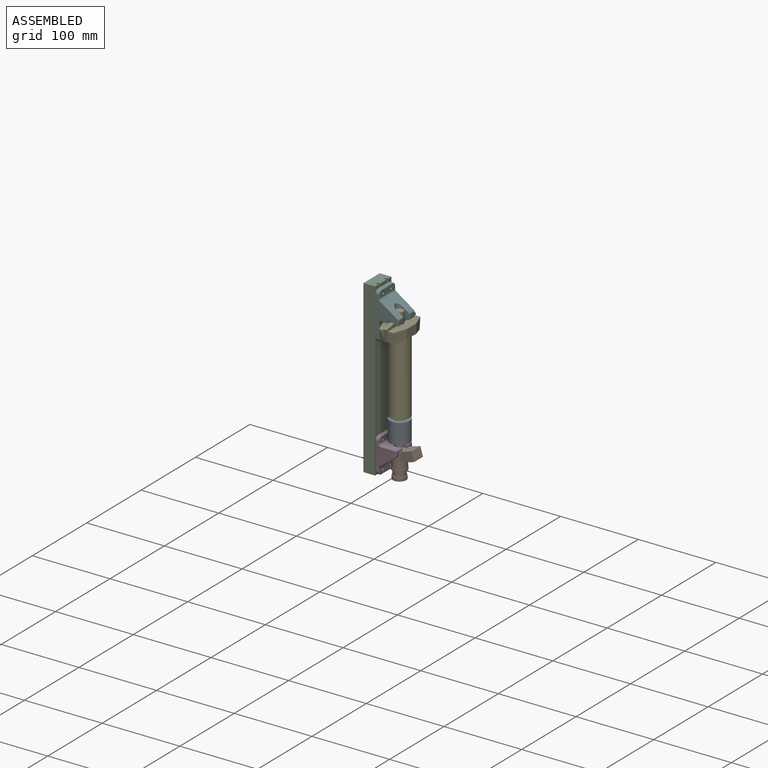
[diagram: assembled view]
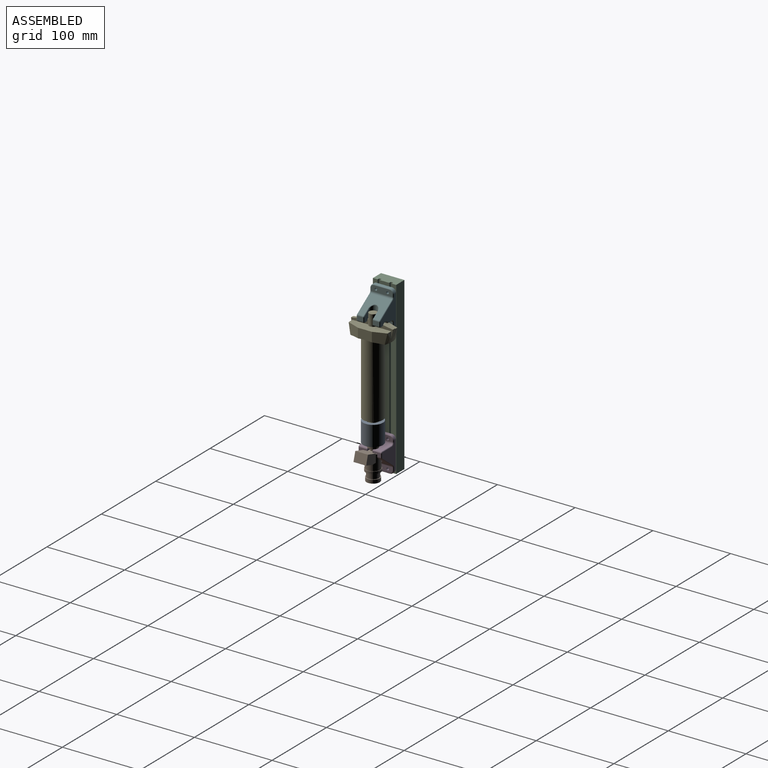
[diagram: assembled view, second angle]
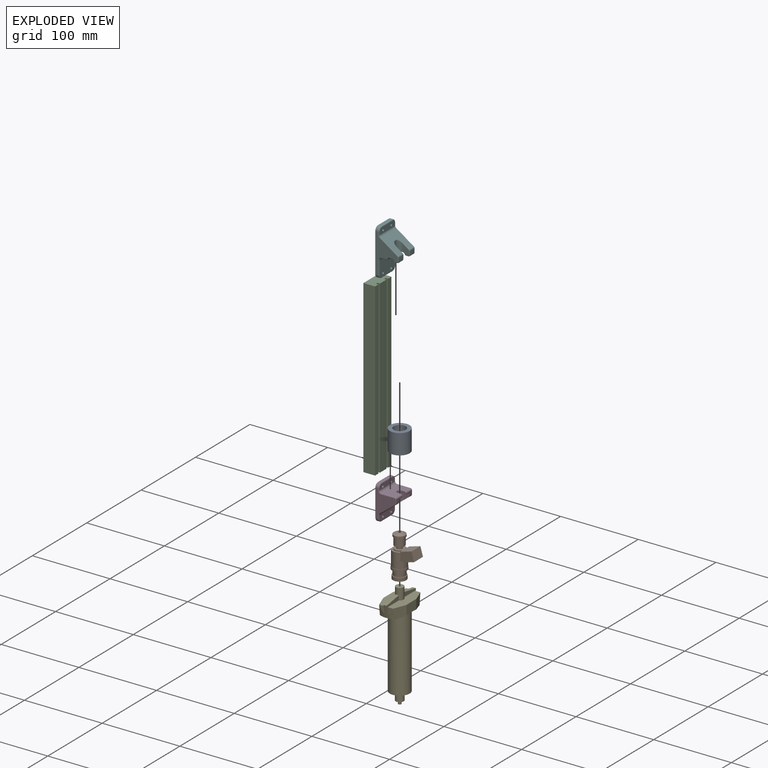
[diagram: exploded view]
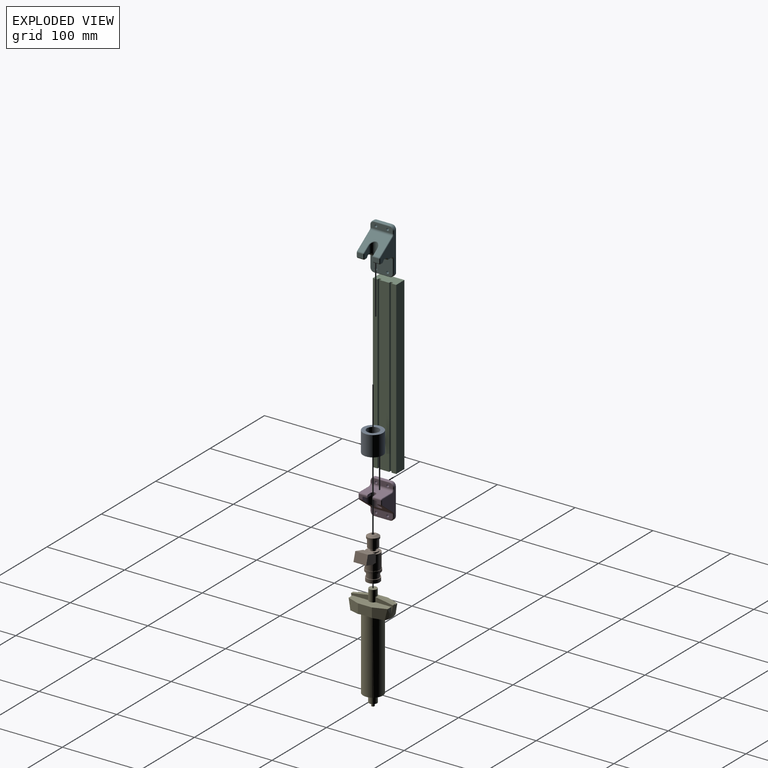
[diagram: exploded view, second angle]
ASSEMBLY  parts=6 mates=5
PART A: 6 faces, bbox 25.5x26x25.5 mm
  f0: plane 25.5x25.5mm, normal (0,-1,0), area 356.8mm2, adj f1,f5
  f1: cylinder r=7mm len=14mm, axis (0,-1,0), area 351.9mm2, adj f0,f2
  f2: cone r=7mm half-angle=4.3deg, axis (0,1,0), area 464.7mm2, adj f1,f3
  f3: cylinder r=7.75mm len=15.5mm, axis (0,-1,0), area 389.6mm2, adj f2,f4
  f4: plane 25.5x25.5mm, normal (0,1,0), area 322mm2, adj f3,f5
  f5: cylinder r=12.75mm len=26mm, axis (0,-1,0), area 2082.9mm2, adj f0,f4
PART B: 29 faces, bbox 54x19x34 mm
  f0: plane 18x15.62mm, normal (1,0,0), area 101.8mm2, adj f1,f7,f22
  f1: cylinder r=9mm len=19.5mm, axis (-1,0,0), area 982.1mm2, adj f0,f8,f22,f23
  f2: cone r=7.5mm half-angle=63.4deg, axis (1,0,0), area 49.2mm2, adj f3,f21
  f3: cylinder r=6.5mm len=13mm, axis (-1,0,0), area 408.4mm2, adj f2,f4
  f4: plane 13x13mm, normal (-1,0,0), area 94.2mm2, adj f3,f5
  f5: cylinder r=3.5mm len=7mm, axis (-1,0,0), area 79.2mm2, adj f4,f6
  f6: plane 13x13mm, normal (1,0,0), area 94.2mm2, adj f5,f7
  f7: cylinder r=6.5mm len=13mm, axis (-1,0,0), area 57.2mm2, adj f0,f6
  f8: plane 19x19mm, normal (1,0,0), area 29.1mm2, adj f1,f9
  f9: cylinder r=9.5mm len=19mm, axis (-1,0,0), area 179.1mm2, adj f8,f10
  f10: plane 19x19mm, normal (-1,0,0), area 106.8mm2, adj f9,f11
  f11: cylinder r=7.5mm len=15mm, axis (-1,0,0), area 329.9mm2, adj f10,f12
  f12: plane 17x17mm, normal (1,0,0), area 50.3mm2, adj f11,f13
  f13: cylinder r=8.5mm len=17mm, axis (-1,0,0), area 240.3mm2, adj f12,f14
  f14: plane 17x17mm, normal (-1,0,0), area 148.4mm2, adj f13,f15
  f15: cone r=5mm half-angle=26.6deg, axis (-1,0,0), area 112.4mm2, adj f14,f16
  f16: plane 6x6mm, normal (-1,0,0), area 28.3mm2, adj f15
  f17: plane 3.5x3.5mm, normal (1,0,0), area 9.6mm2, adj f18
  f18: cylinder r=1.75mm len=6mm, axis (-1,0,0), area 66mm2, adj f17,f19
  f19: plane 8x8mm, normal (1,0,0), area 40.6mm2, adj f18,f20
  f20: cone r=4mm half-angle=60.3deg, axis (-1,0,0), area 145.6mm2, adj f19,f21
  f21: cylinder r=7.5mm len=15mm, axis (-1,0,0), area 117.8mm2, adj f2,f20
  f22: plane 16.3x10.79mm, normal (0,0,-1), area 66.1mm2, adj f0,f1,f23,f24,f27,f28
  f23: plane 16.3x5.88mm, normal (-1,0,0), area 75.9mm2, adj f1,f22,f26,f27,f28
  f24: plane 16.3x14.55mm, normal (0.96,0,-0.28), area 246.8mm2, adj f22,f25,f27,f28
  f25: plane 16.3x11.53mm, normal (0.28,0,0.96), area 195.6mm2, adj f24,f26,f27,f28
  f26: plane 16.3x12mm, normal (-0.96,0,0.28), area 203.6mm2, adj f23,f25,f27,f28
  f27: plane 17.88x15mm, normal (0,-1,0), area 197.5mm2, adj f22,f23,f24,f25,f26
  f28: plane 17.88x15mm, normal (0,1,0), area 197.5mm2, adj f22,f23,f24,f25,f26
PART C: 14 faces, bbox 220x30x15 mm
  f0: plane 220x15mm, normal (0,-1,0), area 3300mm2, adj f1,f11,f12,f13
  f1: plane 220x30mm, normal (0,0,-1), area 6600mm2, adj f0,f2,f12,f13
  f2: plane 220x15mm, normal (0,1,0), area 3300mm2, adj f1,f3,f12,f13
  f3: plane 220x6mm, normal (0,0,1), area 1320mm2, adj f2,f4,f12,f13
  f4: plane 220x3mm, normal (0,-1,0), area 660mm2, adj f3,f5,f12,f13
  f5: plane 220x3mm, normal (0,0,1), area 660mm2, adj f4,f6,f12,f13
  f6: plane 220x3mm, normal (0,1,0), area 660mm2, adj f5,f7,f12,f13
  f7: plane 220x12mm, normal (0,0,1), area 2640mm2, adj f6,f8,f12,f13
  f8: plane 220x3mm, normal (0,-1,0), area 660mm2, adj f7,f9,f12,f13
  f9: plane 220x3mm, normal (0,0,1), area 660mm2, adj f8,f10,f12,f13
  f10: plane 220x3mm, normal (0,1,0), area 660mm2, adj f9,f11,f12,f13
  f11: plane 220x6mm, normal (0,0,1), area 1320mm2, adj f0,f10,f12,f13
  f12: plane 30x15mm, normal (1,0,0), area 432mm2, adj f0,f1,f2,f3,f4,f5,f6,f7
  f13: plane 30x15mm, normal (-1,0,0), area 432mm2, adj f0,f1,f2,f3,f4,f5,f6,f7
PART D: 67 faces, bbox 45.8x30.8x27.2 mm
  f0: plane 28x19.67mm, normal (-0.79,0,0.61), area 400.7mm2, adj f14,f15,f16,f19,f31,f32,f42,f43
  f1: plane 10.6x4.53mm, normal (0,0,1), area 29.7mm2, adj f12,f16,f17,f20,f31,f33,f46
  f2: plane 28x17mm, normal (1,0,0), area 430.6mm2, adj f11,f12,f13,f18,f33,f34,f50,f51
  f3: plane 28x7.53mm, normal (0,0,1), area 187.8mm2, adj f19,f23,f26,f35,f36,f37,f38,f39
  f4: plane 35x25mm, normal (0,1,0), area 438.8mm2, adj f27,f30,f38,f40,f42,f44,f46,f48
  f5: plane 20x3mm, normal (-1,0,0), area 60mm2, adj f27,f28,f35,f59
  f6: plane 35x25mm, normal (0,-1,0), area 438.8mm2, adj f28,f29,f39,f41,f43,f45,f47,f49
  f7: plane 20x3mm, normal (1,0,0), area 60mm2, adj f29,f30,f58,f66
  f8: plane 28x6mm, normal (0,0,1), area 145mm2, adj f18,f24,f25,f54,f55,f56,f57,f58
  f9: plane 43x28mm, normal (0,0,-1), area 1158.1mm2, adj f23,f24,f25,f26,f59,f60,f61,f62
  f10: plane 10.6x4.53mm, normal (0,0,1), area 29.7mm2, adj f11,f14,f17,f22,f32,f34,f47
  f11: plane 6x3.5mm, normal (0,1,0), area 20.1mm2, adj f2,f10,f13,f17,f34
  f12: plane 6x3.5mm, normal (0,-1,0), area 20.1mm2, adj f1,f2,f13,f17,f33
  f13: cylinder r=3.4mm len=6.8mm, axis (1,0,0), area 37.4mm2, adj f2,f11,f12,f17
  f14: plane 8.14x6mm, normal (0,1,0), area 34.6mm2, adj f0,f10,f15,f22,f32
  f15: cylinder r=9.5mm len=19mm, axis (1,0,0), area 382.3mm2, adj f0,f14,f16,f21
  f16: plane 8.14x6mm, normal (0,-1,0), area 34.6mm2, adj f0,f1,f15,f20,f31
  f17: plane 17x14.5mm, normal (-1,0,0), area 156.5mm2, adj f1,f10,f11,f12,f13,f20,f21,f22
  f18: cylinder r=3mm len=28mm, axis (0,-1,0), area 131.9mm2, adj f2,f8,f52,f53
  f19: cylinder r=3mm len=28mm, axis (0,1,0), area 76.7mm2, adj f0,f3,f40,f41
  f20: cylinder r=1mm len=6mm, axis (0,0,-1), area 9.4mm2, adj f1,f16,f17,f21
  f21: torus R=8.5mm, axis (1,0,0), area 45.1mm2, adj f15,f17,f20,f22
  f22: cylinder r=1mm len=6mm, axis (0,0,1), area 9.4mm2, adj f10,f14,f17,f21
  f23: cylinder r=1.6mm len=5mm, axis (0,0,1), area 50.3mm2, adj f3,f9
  f24: cylinder r=1.6mm len=5mm, axis (0,0,1), area 50.3mm2, adj f8,f9
  f25: cylinder r=1.6mm len=5mm, axis (0,0,1), area 50.3mm2, adj f8,f9
  f26: cylinder r=1.6mm len=5mm, axis (0,0,1), area 50.3mm2, adj f3,f9
  f27: cylinder r=5mm len=5mm, axis (0,0,1), area 23.6mm2, adj f4,f5,f36,f60
  f28: cylinder r=5mm len=5mm, axis (0,0,-1), area 23.6mm2, adj f5,f6,f37,f61
  f29: cylinder r=5mm len=5mm, axis (0,0,1), area 23.6mm2, adj f6,f7,f57,f65
  f30: cylinder r=5mm len=5mm, axis (0,0,-1), area 23.6mm2, adj f4,f7,f56,f64
  f31: cylinder r=3mm len=4.5mm, axis (0,-1,0), area 12.3mm2, adj f0,f1,f16,f44
  f32: cylinder r=3mm len=4.5mm, axis (0,-1,0), area 12.3mm2, adj f0,f10,f14,f45
  f33: cylinder r=2mm len=10.6mm, axis (0,1,0), area 33.3mm2, adj f1,f2,f12,f48
  f34: cylinder r=2mm len=10.6mm, axis (0,1,0), area 33.3mm2, adj f2,f10,f11,f49
  f35: cylinder r=1mm len=20mm, axis (0,1,0), area 31.4mm2, adj f3,f5,f36,f37
  f36: torus R=4mm, axis (0,0,1), area 11.4mm2, adj f3,f27,f35,f38
  f37: torus R=4mm, axis (0,0,1), area 11.4mm2, adj f3,f28,f35,f39
  f38: cylinder r=1mm len=3.53mm, axis (1,0,0), area 5.5mm2, adj f3,f4,f36,f40
  f39: cylinder r=1mm len=3.53mm, axis (-1,0,0), area 5.5mm2, adj f3,f6,f37,f41
  f40: torus R=4mm, axis (0,1,0), area 4.8mm2, adj f4,f19,f38,f42
  f41: torus R=4mm, axis (0,1,0), area 4.8mm2, adj f6,f19,f39,f43
  f42: cylinder r=1mm len=20.28mm, axis (0.61,0,0.79), area 39mm2, adj f0,f4,f40,f44
  f43: cylinder r=1mm len=20.28mm, axis (-0.61,0,-0.79), area 39mm2, adj f0,f6,f41,f45
  f44: torus R=2mm, axis (0,1,0), area 3.8mm2, adj f4,f31,f42,f46
  f45: torus R=2mm, axis (0,1,0), area 3.8mm2, adj f6,f32,f43,f47
  f46: cylinder r=1mm len=4.53mm, axis (1,0,0), area 7.1mm2, adj f1,f4,f44,f48
  f47: cylinder r=1mm len=4.53mm, axis (-1,0,0), area 7.1mm2, adj f6,f10,f45,f49
  f48: torus R=1mm, axis (0,1,0), area 4mm2, adj f4,f33,f46,f50
  f49: torus R=1mm, axis (0,1,0), area 4mm2, adj f6,f34,f47,f51
  f50: cylinder r=1mm len=17mm, axis (0,0,-1), area 26.7mm2, adj f2,f4,f48,f52
  f51: cylinder r=1mm len=17mm, axis (0,0,1), area 26.7mm2, adj f2,f6,f49,f53
  f52: torus R=4mm, axis (0,1,0), area 8.3mm2, adj f4,f18,f50,f54
  f53: torus R=4mm, axis (0,1,0), area 8.3mm2, adj f6,f18,f51,f55
  f54: cylinder r=1mm len=2mm, axis (1,0,0), area 3.1mm2, adj f4,f8,f52,f56
  f55: cylinder r=1mm len=2mm, axis (-1,0,0), area 3.1mm2, adj f6,f8,f53,f57
  f56: torus R=4mm, axis (0,0,1), area 11.4mm2, adj f8,f30,f54,f58
  f57: torus R=4mm, axis (0,0,1), area 11.4mm2, adj f8,f29,f55,f58
  f58: cylinder r=1mm len=20mm, axis (0,-1,0), area 31.4mm2, adj f7,f8,f56,f57
  f59: cylinder r=1mm len=20mm, axis (0,-1,0), area 31.4mm2, adj f5,f9,f60,f61
  f60: torus R=4mm, axis (0,0,1), area 11.4mm2, adj f9,f27,f59,f62
  f61: torus R=4mm, axis (0,0,1), area 11.4mm2, adj f9,f28,f59,f63
  f62: cylinder r=1mm len=35mm, axis (-1,0,0), area 55mm2, adj f4,f9,f60,f64
  f63: cylinder r=1mm len=35mm, axis (1,0,0), area 55mm2, adj f6,f9,f61,f65
  f64: torus R=4mm, axis (0,0,1), area 11.4mm2, adj f9,f30,f62,f66
  f65: torus R=4mm, axis (0,0,1), area 11.4mm2, adj f9,f29,f63,f66
  f66: cylinder r=1mm len=20mm, axis (0,1,0), area 31.4mm2, adj f7,f9,f64,f65
PART E: 35 faces, bbox 137.1x48.7x54.1 mm
  f0: cone r=24.28mm half-angle=9.8deg, axis (1,0,0), area 205mm2, adj f3,f5,f22,f24,f25,f28,f31,f33
  f1: cone r=24.28mm half-angle=9.8deg, axis (1,0,0), area 205mm2, adj f3,f15,f21,f23,f26,f27,f30,f34
  f2: plane 50.08x12.95mm, normal (1,0,0), area 532.9mm2, adj f14,f23,f24,f27,f28,f29,f30,f31
  f3: cone r=12.7mm half-angle=80.2deg, axis (-1,0,0), area 760.8mm2, adj f0,f1,f16,f29,f30,f31,f32,f33
  f4: plane 50.08x12.95mm, normal (1,0,0), area 532.9mm2, adj f14,f21,f22,f25,f26,f32,f33,f34
  f5: cone r=27mm half-angle=80.2deg, axis (-1,0,0), area 92mm2, adj f0,f14,f22,f24
  f6: plane 4x4mm, normal (-1,0,0), area 7.7mm2, adj f7,f20
  f7: cylinder r=1.25mm len=4.95mm, axis (1,0,0), area 38.9mm2, adj f6,f8
  f8: plane 8.8x8.8mm, normal (1,0,0), area 55.9mm2, adj f7,f9
  f9: cylinder r=4.4mm len=8.8mm, axis (1,0,0), area 208.6mm2, adj f8,f10
  f10: cone r=11.95mm half-angle=67deg, axis (1,0,0), area 421.2mm2, adj f9,f11
  f11: cylinder r=11.95mm len=103.94mm, axis (1,0,0), area 7803.9mm2, adj f10,f12
  f12: plane 23.9x23.9mm, normal (-1,0,0), area 448.6mm2, adj f11
  f13: plane 10x10mm, normal (1,0,0), area 78.5mm2, adj f14
  f14: cylinder r=5mm len=14.5mm, axis (1,0,0), area 404.3mm2, adj f2,f4,f5,f13,f15,f21,f22,f23
  f15: cone r=27mm half-angle=80.2deg, axis (-1,0,0), area 92mm2, adj f1,f14,f21,f23
  f16: cylinder r=12.7mm len=95.8mm, axis (1,0,0), area 7644.5mm2, adj f3,f17
  f17: cone r=5.15mm half-angle=67deg, axis (1,0,0), area 459.8mm2, adj f16,f18
  f18: cylinder r=5.15mm len=10.3mm, axis (1,0,0), area 252.4mm2, adj f17,f19
  f19: plane 10.3x10.3mm, normal (-1,0,0), area 70.8mm2, adj f18,f20
  f20: cylinder r=2mm len=4.2mm, axis (1,0,0), area 52.8mm2, adj f6,f19
  f21: plane 22.37x14.67mm, normal (0,1,0), area 99.5mm2, adj f1,f4,f14,f15,f26
  f22: plane 22.37x14.67mm, normal (0,1,0), area 99.5mm2, adj f0,f4,f5,f14,f25
  f23: plane 22.37x14.67mm, normal (0,-1,0), area 99.5mm2, adj f1,f2,f14,f15,f27
  f24: plane 22.37x14.67mm, normal (0,-1,0), area 99.5mm2, adj f0,f2,f5,f14,f28
  f25: plane 8.6x6.95mm, normal (0,0,-1), area 35.9mm2, adj f0,f4,f22
  f26: plane 8.6x6.95mm, normal (0,0,1), area 35.9mm2, adj f1,f4,f21
  f27: plane 8.6x6.95mm, normal (0,0,1), area 35.9mm2, adj f1,f2,f23
  f28: plane 8.6x6.95mm, normal (0,0,-1), area 35.9mm2, adj f0,f2,f24
  f29: plane 18x12.33mm, normal (0,-1,0), area 216.8mm2, adj f2,f3,f30,f31
  f30: plane 16.18x13.64mm, normal (0,-0.94,0.35), area 200.4mm2, adj f1,f2,f3,f29
  f31: plane 16.18x13.64mm, normal (0,-0.94,-0.35), area 200.4mm2, adj f0,f2,f3,f29
  f32: plane 18x12.33mm, normal (0,1,0), area 216.8mm2, adj f3,f4,f33,f34
  f33: plane 16.18x13.64mm, normal (0,0.94,-0.35), area 200.4mm2, adj f0,f3,f4,f32
  f34: plane 16.18x13.64mm, normal (0,0.94,0.35), area 200.4mm2, adj f1,f3,f4,f32
PART F: 109 faces, bbox 60.8x30.8x30.2 mm
  f0: plane 12.17x1.22mm, normal (0.55,0,0.83), area 16.4mm2, adj f34,f35,f55,f100
  f1: plane 7.5x2.93mm, normal (1,0,0), area 22mm2, adj f33,f38,f67,f86
  f2: plane 7.5x4.94mm, normal (0,0,1), area 37.1mm2, adj f28,f29,f70,f95
  f3: plane 7.5x1.22mm, normal (0.55,0,-0.83), area 11mm2, adj f33,f36,f63,f90
  f4: plane 8.2x2.86mm, normal (1,0,0), area 22.1mm2, adj f31,f32,f58,f108
  f5: plane 7.5x2.93mm, normal (1,0,0), area 22mm2, adj f28,f30,f66,f99
  f6: plane 50x29mm, normal (0,1,0), area 554.6mm2, adj f12,f39,f42,f46,f48,f50,f52,f54
  f7: plane 50x29mm, normal (0,-1,0), area 554.6mm2, adj f12,f40,f41,f47,f49,f51,f53,f55
  f8: plane 28x7.41mm, normal (0,0,1), area 184.6mm2, adj f16,f19,f26,f78,f79,f80,f81,f82
  f9: plane 20x4mm, normal (-1,0,0), area 80mm2, adj f12,f39,f40,f82
  f10: plane 20x4mm, normal (1,0,0), area 80mm2, adj f12,f41,f42,f43
  f11: plane 28x21mm, normal (0,0,1), area 565mm2, adj f17,f18,f27,f43,f44,f45,f46,f47
  f12: plane 60x30mm, normal (0,0,-1), area 1746.4mm2, adj f6,f7,f9,f10,f16,f17,f18,f19
  f13: plane 7.5x4.94mm, normal (0,0,1), area 37.1mm2, adj f37,f38,f71,f83
  f14: plane 28x22.81mm, normal (-0.83,0,0.56), area 573.3mm2, adj f26,f29,f37,f74,f75,f87,f89,f91
  f15: plane 28x5.93mm, normal (1,0,0), area 166mm2, adj f27,f34,f50,f51
  f16: cylinder r=1.6mm len=5mm, axis (0,0,1), area 50.3mm2, adj f8,f12
  f17: cylinder r=1.6mm len=5mm, axis (0,0,1), area 50.3mm2, adj f11,f12
  f18: cylinder r=1.6mm len=5mm, axis (0,0,1), area 50.3mm2, adj f11,f12
  f19: cylinder r=1.6mm len=5mm, axis (0,0,1), area 50.3mm2, adj f8,f12
  f20: plane 7.5x1.22mm, normal (0.55,0,-0.83), area 11mm2, adj f30,f31,f62,f103
  f21: plane 12.17x1.22mm, normal (0.55,0,0.83), area 16.4mm2, adj f32,f34,f54,f104
  f22: plane 8.2x2.86mm, normal (1,0,0), area 22.1mm2, adj f35,f36,f59,f96
  f23: cylinder r=5.5mm len=16.17mm, axis (1,0,0), area 220.4mm2, adj f24,f25,f89,f94,f96,f98,f100,f102
  f24: plane 11.91x8mm, normal (0,-1,0), area 66mm2, adj f23,f91,f93,f95,f97,f99,f101,f103
  f25: plane 11.91x8mm, normal (0,1,0), area 66mm2, adj f23,f83,f84,f85,f86,f87,f88,f90
  f26: cylinder r=3mm len=28mm, axis (0,1,0), area 81.8mm2, adj f8,f14,f76,f77
  f27: cylinder r=3mm len=28mm, axis (0,-1,0), area 131.9mm2, adj f11,f15,f48,f49
  f28: cylinder r=2mm len=7.5mm, axis (0,1,0), area 23.6mm2, adj f2,f5,f68,f97
  f29: cylinder r=2mm len=7.5mm, axis (0,-1,0), area 14.6mm2, adj f2,f14,f72,f93
  f30: cylinder r=2mm len=7.5mm, axis (0,1,0), area 14.7mm2, adj f5,f20,f64,f101
  f31: cylinder r=2mm len=7.5mm, axis (0,-1,0), area 14.7mm2, adj f4,f20,f60,f105,f107
  f32: cylinder r=2mm len=10.42mm, axis (0,-1,0), area 18.1mm2, adj f4,f21,f56,f106
  f33: cylinder r=2mm len=7.5mm, axis (0,1,0), area 14.7mm2, adj f1,f3,f65,f88
  f34: cylinder r=2mm len=28mm, axis (0,1,0), area 53.1mm2, adj f0,f15,f21,f52,f53,f102
  f35: cylinder r=2mm len=10.42mm, axis (0,-1,0), area 18.1mm2, adj f0,f22,f57,f98
  f36: cylinder r=2mm len=7.5mm, axis (0,-1,0), area 14.7mm2, adj f3,f22,f61,f92,f94
  f37: cylinder r=2mm len=7.5mm, axis (0,-1,0), area 14.6mm2, adj f13,f14,f73,f85
  f38: cylinder r=2mm len=7.5mm, axis (0,1,0), area 23.6mm2, adj f1,f13,f69,f84
  f39: cylinder r=5mm len=5mm, axis (0,0,1), area 31.4mm2, adj f6,f9,f12,f80
  f40: cylinder r=5mm len=5mm, axis (0,0,-1), area 31.4mm2, adj f7,f9,f12,f81
  f41: cylinder r=5mm len=5mm, axis (0,0,-1), area 31.4mm2, adj f7,f10,f12,f45
  f42: cylinder r=5mm len=5mm, axis (0,0,1), area 31.4mm2, adj f6,f10,f12,f44
  f43: cylinder r=1mm len=20mm, axis (0,-1,0), area 31.4mm2, adj f10,f11,f44,f45
  f44: torus R=4mm, axis (0,0,1), area 11.4mm2, adj f11,f42,f43,f46
  f45: torus R=4mm, axis (0,0,1), area 11.4mm2, adj f11,f41,f43,f47
  f46: cylinder r=1mm len=17mm, axis (1,0,0), area 26.7mm2, adj f6,f11,f44,f48
  f47: cylinder r=1mm len=17mm, axis (-1,0,0), area 26.7mm2, adj f7,f11,f45,f49
  f48: torus R=4mm, axis (0,1,0), area 8.3mm2, adj f6,f27,f46,f50
  f49: torus R=4mm, axis (0,1,0), area 8.3mm2, adj f7,f27,f47,f51
  f50: cylinder r=1mm len=5.93mm, axis (0,0,-1), area 9.3mm2, adj f6,f15,f48,f52
  f51: cylinder r=1mm len=5.93mm, axis (0,0,1), area 9.3mm2, adj f7,f15,f49,f53
  f52: torus R=1mm, axis (0,1,0), area 2.5mm2, adj f6,f34,f50,f54
  f53: torus R=1mm, axis (0,1,0), area 2.5mm2, adj f7,f34,f51,f55
  f54: cylinder r=1mm len=1.77mm, axis (0.83,0,-0.55), area 2.3mm2, adj f6,f21,f52,f56
  f55: cylinder r=1mm len=1.77mm, axis (-0.83,0,0.55), area 2.3mm2, adj f0,f7,f53,f57
  f56: torus R=3mm, axis (0,1,0), area 3.6mm2, adj f6,f32,f54,f58
  f57: torus R=3mm, axis (0,1,0), area 3.6mm2, adj f7,f35,f55,f59
  f58: cylinder r=1mm len=2.86mm, axis (0,0,-1), area 4.5mm2, adj f4,f6,f56,f60
  f59: cylinder r=1mm len=2.86mm, axis (0,0,1), area 4.5mm2, adj f7,f22,f57,f61
  f60: torus R=3mm, axis (0,1,0), area 3.6mm2, adj f6,f31,f58,f62
  f61: torus R=3mm, axis (0,1,0), area 3.6mm2, adj f7,f36,f59,f63
  f62: cylinder r=1mm len=1.77mm, axis (-0.83,0,-0.55), area 2.3mm2, adj f6,f20,f60,f64
  f63: cylinder r=1mm len=1.77mm, axis (0.83,0,0.55), area 2.3mm2, adj f3,f7,f61,f65
  f64: torus R=1mm, axis (0,1,0), area 2.5mm2, adj f6,f30,f62,f66
  f65: torus R=1mm, axis (0,1,0), area 2.5mm2, adj f7,f33,f63,f67
  f66: cylinder r=1mm len=2.93mm, axis (0,0,-1), area 4.6mm2, adj f5,f6,f64,f68
  f67: cylinder r=1mm len=2.93mm, axis (0,0,1), area 4.6mm2, adj f1,f7,f65,f69
  f68: torus R=1mm, axis (0,1,0), area 4mm2, adj f6,f28,f66,f70
  f69: torus R=1mm, axis (0,1,0), area 4mm2, adj f7,f38,f67,f71
  f70: cylinder r=1mm len=4.94mm, axis (1,0,0), area 7.8mm2, adj f2,f6,f68,f72
  f71: cylinder r=1mm len=4.94mm, axis (-1,0,0), area 7.8mm2, adj f7,f13,f69,f73
  f72: torus R=1mm, axis (0,1,0), area 2.5mm2, adj f6,f29,f70,f74
  f73: torus R=1mm, axis (0,1,0), area 2.5mm2, adj f7,f37,f71,f75
  f74: cylinder r=1mm len=23.37mm, axis (0.56,0,0.83), area 43.3mm2, adj f6,f14,f72,f76
  f75: cylinder r=1mm len=23.37mm, axis (-0.56,0,-0.83), area 43.3mm2, adj f7,f14,f73,f77
  f76: torus R=4mm, axis (0,1,0), area 5.1mm2, adj f6,f26,f74,f78
  f77: torus R=4mm, axis (0,1,0), area 5.1mm2, adj f7,f26,f75,f79
  f78: cylinder r=1mm len=3.41mm, axis (1,0,0), area 5.4mm2, adj f6,f8,f76,f80
  f79: cylinder r=1mm len=3.41mm, axis (-1,0,0), area 5.4mm2, adj f7,f8,f77,f81
  f80: torus R=4mm, axis (0,0,1), area 11.4mm2, adj f8,f39,f78,f82
  f81: torus R=4mm, axis (0,0,1), area 11.4mm2, adj f8,f40,f79,f82
  f82: cylinder r=1mm len=20mm, axis (0,1,0), area 31.4mm2, adj f8,f9,f80,f81
  f83: cylinder r=1mm len=4.94mm, axis (1,0,0), area 7.8mm2, adj f13,f25,f84,f85
  f84: torus R=1mm, axis (0,1,0), area 4mm2, adj f25,f38,f83,f86
  f85: torus R=1mm, axis (0,1,0), area 2.5mm2, adj f25,f37,f83,f87
  f86: cylinder r=1mm len=2.93mm, axis (0,0,1), area 4.6mm2, adj f1,f25,f84,f88
  f87: cylinder r=1mm len=8.12mm, axis (-0.56,0,-0.83), area 14.4mm2, adj f14,f25,f85,f89
  f88: torus R=1mm, axis (0,1,0), area 2.5mm2, adj f25,f33,f86,f90
  f89: bspline ~13x7.63mm, area 25.4mm2, adj f14,f23,f87,f91
  f90: cylinder r=1mm len=1.77mm, axis (0.83,0,0.55), area 2.3mm2, adj f3,f25,f88,f92
  f91: cylinder r=1mm len=8.12mm, axis (0.56,0,0.83), area 14.4mm2, adj f14,f24,f89,f93
  f92: torus R=3mm, axis (0,1,0), area 3.6mm2, adj f25,f36,f90,f94
  f93: torus R=1mm, axis (0,1,0), area 2.5mm2, adj f24,f29,f91,f95
  f94: bspline ~1.01x1mm, area 0.1mm2, adj f23,f36,f92,f96
  f95: cylinder r=1mm len=4.94mm, axis (-1,0,0), area 7.8mm2, adj f2,f24,f93,f97
  f96: torus R=6.5mm, axis (1,0,0), area 4.2mm2, adj f22,f23,f94,f98
  f97: torus R=1mm, axis (0,1,0), area 4mm2, adj f24,f28,f95,f99
  f98: bspline ~3.39x2.84mm, area 3.6mm2, adj f23,f35,f96,f100
  f99: cylinder r=1mm len=2.93mm, axis (0,0,-1), area 4.6mm2, adj f5,f24,f97,f101
  f100: bspline ~2.03x1.77mm, area 1.6mm2, adj f0,f23,f98,f102
  f101: torus R=1mm, axis (0,1,0), area 2.5mm2, adj f24,f30,f99,f103
  f102: bspline ~4x1.2mm, area 3.1mm2, adj f23,f34,f100,f104
  f103: cylinder r=1mm len=1.77mm, axis (-0.83,0,-0.55), area 2.3mm2, adj f20,f24,f101,f105
  f104: bspline ~2.03x1.77mm, area 1.6mm2, adj f21,f23,f102,f106
  f105: torus R=3mm, axis (0,1,0), area 3.6mm2, adj f24,f31,f103,f107
  f106: bspline ~3.13x2.68mm, area 3.6mm2, adj f23,f32,f104,f108
  f107: bspline ~1.01x1mm, area 0.1mm2, adj f23,f31,f105,f108
  f108: torus R=6.5mm, axis (1,0,0), area 4.2mm2, adj f4,f23,f106,f107
PLACE A rot(axis=(1,0,0),90deg) t=(33.65,13.46,-14.21)mm
PLACE B rot(axis=(-0.71,0,-0.71),180deg) t=(33.4,13.46,-58.67)mm
PLACE C rot(axis=(0,1,0),90deg) t=(-2.6,13.46,164.62)mm
PLACE D rot(axis=(-0.71,0,-0.71),180deg) t=(12.4,13.46,-54.67)mm
PLACE E rot(axis=(0.58,-0.58,0.58),120deg) t=(33.65,13.46,-0.21)mm
PLACE F rot(axis=(0,1,0),90deg) t=(12.65,13.46,160.54)mm
MATE slider C.f13 <-> F.f9  axis (0,0,1) through (4.65,13.46,164.62)mm
MATE slider C.f12 <-> D.f5  axis (0,0,-1) through (12.4,13.46,-55.38)mm
MATE fastened B.f1 <-> D.f13  axis (0,0,-1) through (33.4,13.46,-19.67)mm
MATE fastened E.f0 <-> F.f23  axis (0,0,1) through (33.65,13.46,136.79)mm
MATE fastened A.f1 <-> E.f0  axis (0,0,1) through (33.65,13.46,11.79)mm
